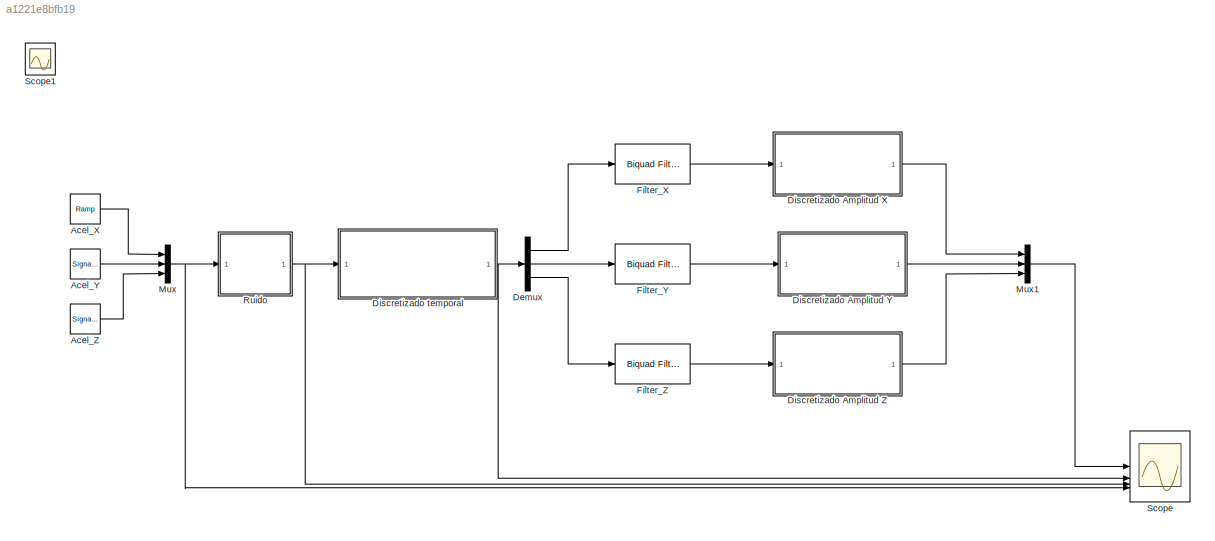
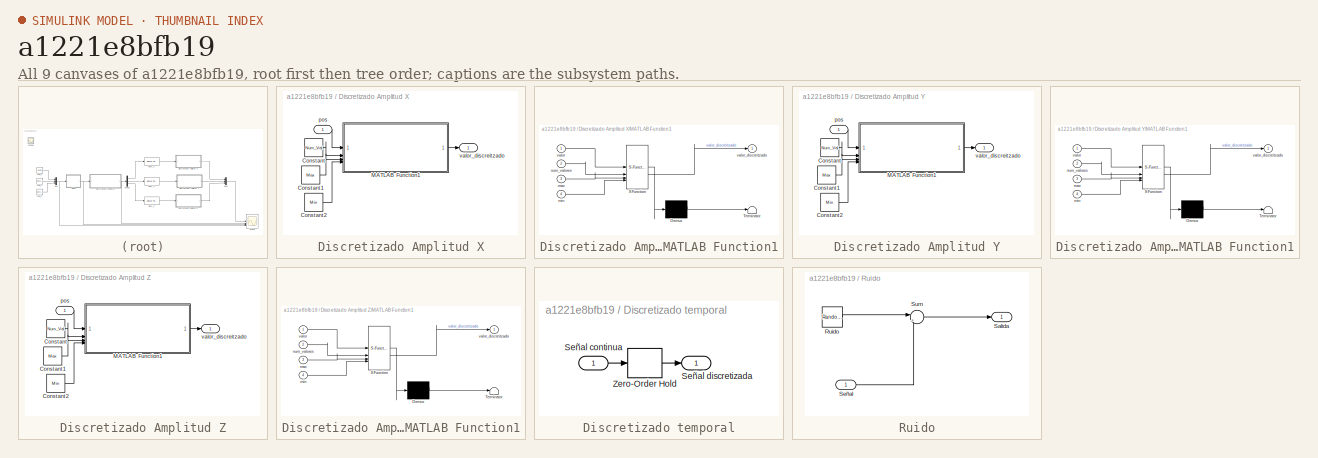
[diagram: thumbnail index - all 9 canvases of the model, root first then tree order]
MODEL slx_a1221e8bfb19
KIND model
CONFIG AbsTol = auto
CONFIG EnableMultiTasking = off
CONFIG FixedStep = auto
CONFIG MaxStep = auto
CONFIG MinStep = auto
CONFIG RelTol = 1e-3
CONFIG SampleTimeConstraint = Unconstrained
CONFIG SolverName = VariableStepAuto
CONFIG StartTime = 0.0
CONFIG StopTime = 6
BLOCK [Reference] Acel_X  REF=simulink/Sources/Ramp
  SourceBlock = simulink/Sources/Ramp
  SourceType = Ramp
BLOCK [SignalGenerator] Acel_Y
  Frequency = 2
  WaveForm = sawtooth
BLOCK [SignalGenerator] Acel_Z
  Amplitude = 3
BLOCK [Demux] Demux
  Outputs = 3
BLOCK [SubSystem] Discretizado Amplitud X
BLOCK [Constant] Discretizado Amplitud X/Constant
  Value = Num_Val
BLOCK [Constant] Discretizado Amplitud X/Constant1
  Value = Max
BLOCK [Constant] Discretizado Amplitud X/Constant2
  Value = Min
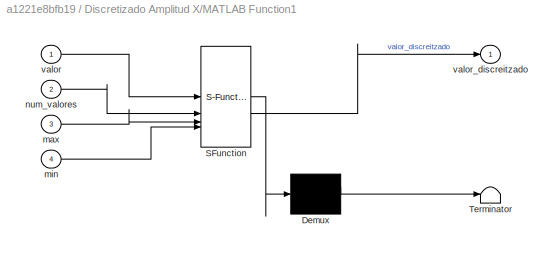
BLOCK [SubSystem] Discretizado Amplitud X/MATLAB Function1
  ErrorFcn = Stateflow.Translate.translate
  LibrarySourceBlock = simulink/User-Defined\nFunctions/MATLAB Function
  PermitHierarchicalResolution = ExplicitOnly
  SFBlockType = MATLAB Function
  TreatAsAtomicUnit = on
BLOCK [Demux] Discretizado Amplitud X/MATLAB Function1/ Demux 
  Outputs = 1
BLOCK [S-Function] Discretizado Amplitud X/MATLAB Function1/ SFunction 
  EnableBusSupport = on
  FunctionName = sf_sfun
  PortCounts = [4 2]
  SFcnIsStateOwnerBlock = off
  SFunctionDeploymentMode = off
  Tag = Stateflow S-Function 3
BLOCK [Terminator] Discretizado Amplitud X/MATLAB Function1/ Terminator 
BLOCK [Inport] Discretizado Amplitud X/MATLAB Function1/max
  Port = 3
BLOCK [Inport] Discretizado Amplitud X/MATLAB Function1/min
  Port = 4
BLOCK [Inport] Discretizado Amplitud X/MATLAB Function1/num_valores
  Port = 2
BLOCK [Inport] Discretizado Amplitud X/MATLAB Function1/valor
BLOCK [Outport] Discretizado Amplitud X/MATLAB Function1/valor_discreitzado
BLOCK [Inport] Discretizado Amplitud X/pos
BLOCK [Outport] Discretizado Amplitud X/valor_discreitzado
BLOCK [SubSystem] Discretizado Amplitud Y
BLOCK [Constant] Discretizado Amplitud Y/Constant
  Value = Num_Val
BLOCK [Constant] Discretizado Amplitud Y/Constant1
  Value = Max
BLOCK [Constant] Discretizado Amplitud Y/Constant2
  Value = Min
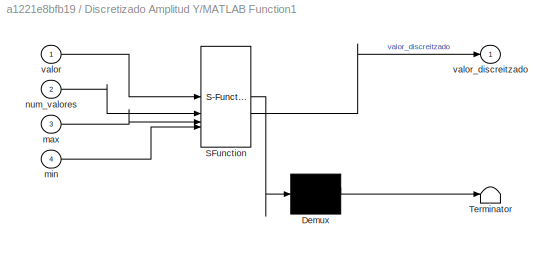
BLOCK [SubSystem] Discretizado Amplitud Y/MATLAB Function1
  ErrorFcn = Stateflow.Translate.translate
  LibrarySourceBlock = simulink/User-Defined\nFunctions/MATLAB Function
  PermitHierarchicalResolution = ExplicitOnly
  SFBlockType = MATLAB Function
  TreatAsAtomicUnit = on
BLOCK [Demux] Discretizado Amplitud Y/MATLAB Function1/ Demux 
  Outputs = 1
BLOCK [S-Function] Discretizado Amplitud Y/MATLAB Function1/ SFunction 
  EnableBusSupport = on
  FunctionName = sf_sfun
  PortCounts = [4 2]
  SFcnIsStateOwnerBlock = off
  SFunctionDeploymentMode = off
  Tag = Stateflow S-Function 1
BLOCK [Terminator] Discretizado Amplitud Y/MATLAB Function1/ Terminator 
BLOCK [Inport] Discretizado Amplitud Y/MATLAB Function1/max
  Port = 3
BLOCK [Inport] Discretizado Amplitud Y/MATLAB Function1/min
  Port = 4
BLOCK [Inport] Discretizado Amplitud Y/MATLAB Function1/num_valores
  Port = 2
BLOCK [Inport] Discretizado Amplitud Y/MATLAB Function1/valor
BLOCK [Outport] Discretizado Amplitud Y/MATLAB Function1/valor_discreitzado
BLOCK [Inport] Discretizado Amplitud Y/pos
BLOCK [Outport] Discretizado Amplitud Y/valor_discreitzado
BLOCK [SubSystem] Discretizado Amplitud Z
BLOCK [Constant] Discretizado Amplitud Z/Constant
  Value = Num_Val
BLOCK [Constant] Discretizado Amplitud Z/Constant1
  Value = Max
BLOCK [Constant] Discretizado Amplitud Z/Constant2
  Value = Min
BLOCK [SubSystem] Discretizado Amplitud Z/MATLAB Function1
  ErrorFcn = Stateflow.Translate.translate
  LibrarySourceBlock = simulink/User-Defined\nFunctions/MATLAB Function
  PermitHierarchicalResolution = ExplicitOnly
  SFBlockType = MATLAB Function
  TreatAsAtomicUnit = on
BLOCK [Demux] Discretizado Amplitud Z/MATLAB Function1/ Demux 
  Outputs = 1
BLOCK [S-Function] Discretizado Amplitud Z/MATLAB Function1/ SFunction 
  EnableBusSupport = on
  FunctionName = sf_sfun
  PortCounts = [4 2]
  SFcnIsStateOwnerBlock = off
  SFunctionDeploymentMode = off
  Tag = Stateflow S-Function 2
BLOCK [Terminator] Discretizado Amplitud Z/MATLAB Function1/ Terminator 
BLOCK [Inport] Discretizado Amplitud Z/MATLAB Function1/max
  Port = 3
BLOCK [Inport] Discretizado Amplitud Z/MATLAB Function1/min
  Port = 4
BLOCK [Inport] Discretizado Amplitud Z/MATLAB Function1/num_valores
  Port = 2
BLOCK [Inport] Discretizado Amplitud Z/MATLAB Function1/valor
BLOCK [Outport] Discretizado Amplitud Z/MATLAB Function1/valor_discreitzado
BLOCK [Inport] Discretizado Amplitud Z/pos
BLOCK [Outport] Discretizado Amplitud Z/valor_discreitzado
BLOCK [SubSystem] Discretizado temporal
BLOCK [Inport] Discretizado temporal/Señal continua
BLOCK [Outport] Discretizado temporal/Señal discretizada
BLOCK [ZeroOrderHold] Discretizado temporal/Zero-Order Hold
  SampleTime = Tiempo_Discretizado
BLOCK [Reference] Filter_X  REF=dsparch4/Biquad Filter
  SourceBlock = dsparch4/Biquad Filter
  SourceType = Biquad Filter
  Tag = BlockMethodSubSystem
  UserDataPersistent = on
BLOCK [Reference] Filter_Y  REF=dsparch4/Biquad Filter
  SourceBlock = dsparch4/Biquad Filter
  SourceType = Biquad Filter
  Tag = BlockMethodSubSystem
  UserDataPersistent = on
BLOCK [Reference] Filter_Z  REF=dsparch4/Biquad Filter
  SourceBlock = dsparch4/Biquad Filter
  SourceType = Biquad Filter
  Tag = BlockMethodSubSystem
  UserDataPersistent = on
BLOCK [Mux] Mux
  DisplayOption = bar
  Inputs = 3
BLOCK [Mux] Mux1
  DisplayOption = bar
  Inputs = 3
BLOCK [SubSystem] Ruido
BLOCK [RandomNumber] Ruido/Ruido
  Mean = M
  SampleTime = T
  Seed = 10
  Variance = V
BLOCK [Outport] Ruido/Salida
BLOCK [Inport] Ruido/Señal
BLOCK [Sum] Ruido/Sum
  Inputs = |++
BLOCK [Scope] Scope
  Floating = off
  NumInputPorts = 4
  ScopeSpecificationString = Simulink.scopes.TimeScopeBlockCfg('CurrentConfiguration', extmgr.ConfigurationSet(extmgr.Configuration('Core','General UI',true),extmgr.Configuration('Core','Source UI',true),extmgr.Configuration('Sources','WiredSimulink',true),extmgr.Configuration('Visuals','Time Domain',true,'SerializedDisplays',{struct('MinYLimReal','-4.28298','MaxYLimReal','7.23917','YLabelReal','','MinYLimMag','0.00000','MaxY...<+1909ch>
BLOCK [Scope] Scope1
  Floating = off
  IOType = viewer
  NumInputPorts = 1
  ScopeSpecificationString = Simulink.scopes.TimeScopeBlockCfg('CurrentConfiguration', extmgr.ConfigurationSet(extmgr.Configuration('Core','General UI',true),extmgr.Configuration('Core','Source UI',true),extmgr.Configuration('Sources','WiredSimulink',true,'DataLoggingVariableName','ScopeData1'),extmgr.Configuration('Visuals','Time Domain',true,'SerializedDisplays',{struct('MinYLimReal','-4.32638','MaxYLimReal','7.25581','YLab...<+1386ch>
LINE Acel_X:1 -> Mux:1
LINE Acel_Y:1 -> Mux:2
LINE Acel_Z:1 -> Mux:3
LINE Demux:1 -> Filter_X:1
LINE Demux:2 -> Filter_Y:1
LINE Demux:3 -> Filter_Z:1
LINE Discretizado Amplitud X/Constant1:1 -> Discretizado Amplitud X/MATLAB Function1:3
LINE Discretizado Amplitud X/Constant2:1 -> Discretizado Amplitud X/MATLAB Function1:4
LINE Discretizado Amplitud X/Constant:1 -> Discretizado Amplitud X/MATLAB Function1:2
LINE Discretizado Amplitud X/MATLAB Function1:1 -> Discretizado Amplitud X/valor_discreitzado:1
LINE Discretizado Amplitud X/pos:1 -> Discretizado Amplitud X/MATLAB Function1:1
LINE Discretizado Amplitud X:1 -> Mux1:1
LINE Discretizado Amplitud Y/Constant1:1 -> Discretizado Amplitud Y/MATLAB Function1:3
LINE Discretizado Amplitud Y/Constant2:1 -> Discretizado Amplitud Y/MATLAB Function1:4
LINE Discretizado Amplitud Y/Constant:1 -> Discretizado Amplitud Y/MATLAB Function1:2
LINE Discretizado Amplitud Y/MATLAB Function1:1 -> Discretizado Amplitud Y/valor_discreitzado:1
LINE Discretizado Amplitud Y/pos:1 -> Discretizado Amplitud Y/MATLAB Function1:1
LINE Discretizado Amplitud Y:1 -> Mux1:2
LINE Discretizado Amplitud Z/Constant1:1 -> Discretizado Amplitud Z/MATLAB Function1:3
LINE Discretizado Amplitud Z/Constant2:1 -> Discretizado Amplitud Z/MATLAB Function1:4
LINE Discretizado Amplitud Z/Constant:1 -> Discretizado Amplitud Z/MATLAB Function1:2
LINE Discretizado Amplitud Z/MATLAB Function1:1 -> Discretizado Amplitud Z/valor_discreitzado:1
LINE Discretizado Amplitud Z/pos:1 -> Discretizado Amplitud Z/MATLAB Function1:1
LINE Discretizado Amplitud Z:1 -> Mux1:3
LINE Discretizado temporal/Señal continua:1 -> Discretizado temporal/Zero-Order Hold:1
LINE Discretizado temporal/Zero-Order Hold:1 -> Discretizado temporal/Señal discretizada:1
NET Discretizado temporal:1 -> Demux:1, Scope:2
LINE Filter_X:1 -> Discretizado Amplitud X:1
LINE Filter_Y:1 -> Discretizado Amplitud Y:1
LINE Filter_Z:1 -> Discretizado Amplitud Z:1
LINE Mux1:1 -> Scope:1
NET Mux:1 -> Ruido:1, Scope:4
LINE Ruido/Ruido:1 -> Ruido/Sum:1
LINE Ruido/Señal:1 -> Ruido/Sum:2
LINE Ruido/Sum:1 -> Ruido/Salida:1
NET Ruido:1 -> Discretizado temporal:1, Scope:3
note: NET lines group one-source signal fan-out (src -> all destinations, sorted); 1:1 wires keep LINE
CHART Discretizado Amplitud Y/MATLAB Function1 states=1 transitions=1
  STATE_LABEL 'eML_blk_kernel()'
  STATE_LABEL 'SCRIPT:\nfunction valor_discreitzado  = fcn(valor,num_valores,max,min)\n\nif(valor>max)\n    valor_discreitzado=max;\n    return\nend\nif(valor<min)\n    valor_discreitzado=min;\n    return\nend\n\n\nvalor_escalon=(max-min)/(num_valores-1);\n\n\ni=min;\n while(i<max)\n    if(i+valor_escalon/2>valor)\n        valor_discreitzado=i;\n        return\n    end\n    i=i+valor_escalon;\nend\n\n\n\n      valor_discreitzado=max;\nend\n'  <repeated x3 — deduplicated; at blocks: MATLAB Function1>
CHART Discretizado Amplitud Z/MATLAB Function1 states=1 transitions=1
  STATE_LABEL 'eML_blk_kernel()'
CHART Discretizado Amplitud X/MATLAB Function1 states=1 transitions=1
  STATE_LABEL 'eML_blk_kernel()'
CHART  states=0 transitions=0
CHART  states=0 transitions=0
CHART  states=0 transitions=0
